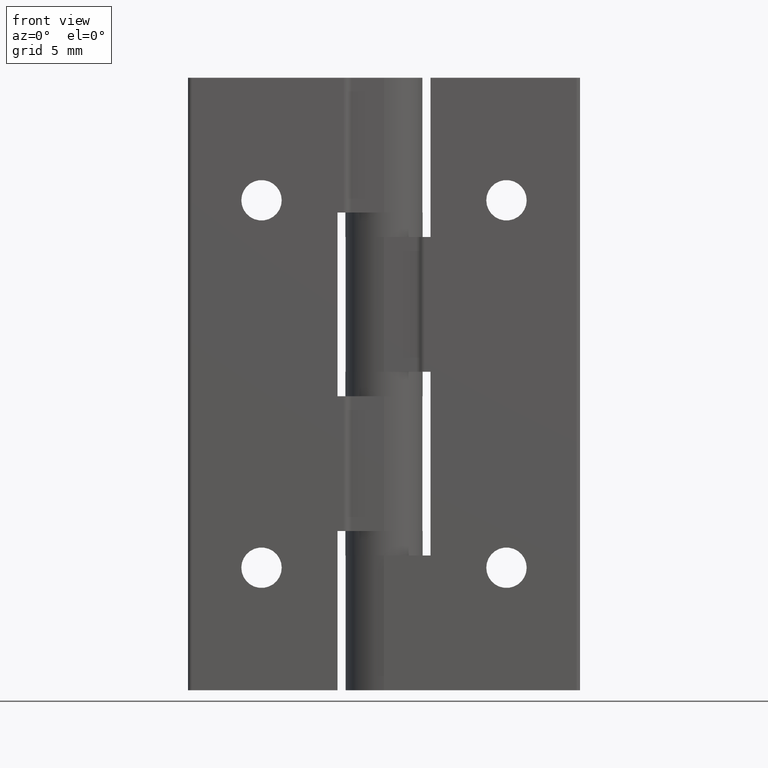
[diagram: clean part render]
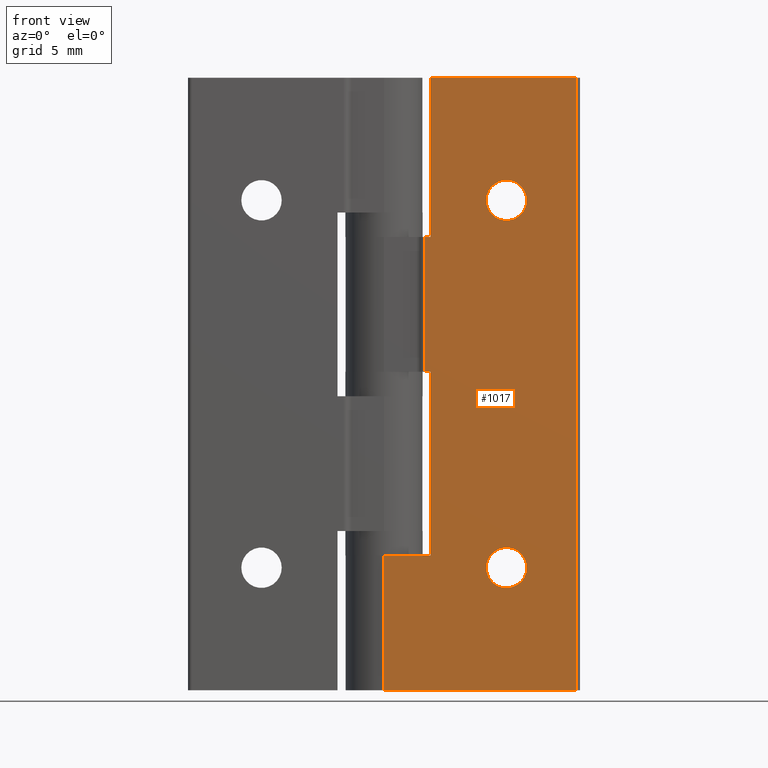
[diagram: same view with one face highlighted and labeled with its STEP entity id]
A machine part, front view. The second image highlights one B-rep face of the part: STEP entity #1017.
In plain terms, the highlighted planar face has unit normal (0, -1, 0).
Its self-contained STEP definition (entity closure, byte-faithful):
#106=FACE_BOUND('',#300,.T.);
#107=FACE_BOUND('',#301,.T.);
#160=CIRCLE('',#1125,1.65);
#162=CIRCLE('',#1129,1.65);
#216=FACE_OUTER_BOUND('',#299,.T.);
#299=EDGE_LOOP('',(#910,#911,#912,#913,#914,#915,#916,#917,#918,#919));
#300=EDGE_LOOP('',(#920));
#301=EDGE_LOOP('',(#921));
#354=LINE('',#1622,#428);
#357=LINE('',#1628,#431);
#361=LINE('',#1645,#435);
#364=LINE('',#1655,#438);
#368=LINE('',#1668,#442);
#377=LINE('',#1692,#451);
#380=LINE('',#1706,#454);
#383=LINE('',#1713,#457);
#385=LINE('',#1732,#459);
#386=LINE('',#1734,#460);
#428=VECTOR('',#1313,15.);
#431=VECTOR('',#1318,0.517792998515511);
#435=VECTOR('',#1334,3.8);
#438=VECTOR('',#1341,13.);
#442=VECTOR('',#1353,0.517792998515509);
#451=VECTOR('',#1378,11.9);
#454=VECTOR('',#1393,50.);
#457=VECTOR('',#1400,15.7);
#459=VECTOR('',#1426,11.);
#460=VECTOR('',#1429,11.);
#512=VERTEX_POINT('',#1619);
#513=VERTEX_POINT('',#1621);
#515=VERTEX_POINT('',#1627);
#522=VERTEX_POINT('',#1643);
#526=VERTEX_POINT('',#1652);
#527=VERTEX_POINT('',#1654);
#532=VERTEX_POINT('',#1666);
#539=VERTEX_POINT('',#1691);
#543=VERTEX_POINT('',#1702);
#546=VERTEX_POINT('',#1712);
#549=VERTEX_POINT('',#1723);
#551=VERTEX_POINT('',#1729);
#624=EDGE_CURVE('',#513,#512,#354,.T.);
#627=EDGE_CURVE('',#515,#513,#357,.T.);
#636=EDGE_CURVE('',#512,#522,#361,.T.);
#640=EDGE_CURVE('',#527,#526,#364,.T.);
#647=EDGE_CURVE('',#526,#532,#368,.T.);
#659=EDGE_CURVE('',#539,#527,#377,.T.);
#666=EDGE_CURVE('',#539,#543,#380,.T.);
#669=EDGE_CURVE('',#543,#546,#383,.T.);
#674=EDGE_CURVE('',#549,#549,#160,.T.);
#676=EDGE_CURVE('',#551,#551,#162,.T.);
#677=EDGE_CURVE('',#515,#532,#385,.T.);
#678=EDGE_CURVE('',#522,#546,#386,.T.);
#910=ORIENTED_EDGE('',*,*,#636,.T.);
#911=ORIENTED_EDGE('',*,*,#678,.T.);
#912=ORIENTED_EDGE('',*,*,#669,.F.);
#913=ORIENTED_EDGE('',*,*,#666,.F.);
#914=ORIENTED_EDGE('',*,*,#659,.T.);
#915=ORIENTED_EDGE('',*,*,#640,.T.);
#916=ORIENTED_EDGE('',*,*,#647,.T.);
#917=ORIENTED_EDGE('',*,*,#677,.F.);
#918=ORIENTED_EDGE('',*,*,#627,.T.);
#919=ORIENTED_EDGE('',*,*,#624,.T.);
#920=ORIENTED_EDGE('',*,*,#674,.T.);
#921=ORIENTED_EDGE('',*,*,#676,.T.);
#964=PLANE('',#1131);
#1017=ADVANCED_FACE('',(#216,#106,#107),#964,.T.);
#1125=AXIS2_PLACEMENT_3D('',#1724,#1414,#1415);
#1129=AXIS2_PLACEMENT_3D('',#1730,#1422,#1423);
#1131=AXIS2_PLACEMENT_3D('',#1733,#1427,#1428);
#1313=DIRECTION('',(-4.16333634234434E-16,-7.22223729145214E-32,-1.));
#1318=DIRECTION('',(1.,1.73472347597681E-16,-3.37258651702057E-16));
#1334=DIRECTION('',(-1.,-1.73472347597681E-16,0.));
#1341=DIRECTION('',(-1.49453099468771E-16,-2.59259800205974E-32,-1.));
#1353=DIRECTION('',(-1.,-1.73472347597681E-16,2.69694108116868E-16));
#1378=DIRECTION('',(-1.,-1.73472347597681E-16,0.));
#1393=DIRECTION('',(0.,0.,-1.));
#1400=DIRECTION('',(-1.,-1.73472347597681E-16,0.));
#1414=DIRECTION('center_axis',(-1.73472347597681E-16,1.,0.));
#1415=DIRECTION('ref_axis',(1.,0.,0.));
#1422=DIRECTION('center_axis',(-1.73472347597681E-16,1.,0.));
#1423=DIRECTION('ref_axis',(1.,0.,0.));
#1426=DIRECTION('',(0.,0.,1.));
#1427=DIRECTION('center_axis',(1.73472347597681E-16,-1.,0.));
#1428=DIRECTION('ref_axis',(-1.,-1.77635683940025E-16,0.));
#1429=DIRECTION('',(0.,0.,-1.));
#1619=CARTESIAN_POINT('',(3.8,-3.35,-39.));
#1621=CARTESIAN_POINT('',(3.8,-3.35,-24.));
#1622=CARTESIAN_POINT('',(3.80000000000001,-3.35,-12.));
#1627=CARTESIAN_POINT('',(3.28220700148449,-3.35,-24.));
#1628=CARTESIAN_POINT('',(3.31619247410172,-3.35,-24.));
#1643=CARTESIAN_POINT('',(0.,-3.35,-39.));
#1645=CARTESIAN_POINT('',(9.9,-3.35,-39.));
#1652=CARTESIAN_POINT('',(3.8,-3.35,-13.));
#1654=CARTESIAN_POINT('',(3.8,-3.35,0.));
#1655=CARTESIAN_POINT('',(3.8,-3.35,9.11663906759503E-16));
#1666=CARTESIAN_POINT('',(3.28220700148449,-3.35,-13.));
#1668=CARTESIAN_POINT('',(9.9,-3.35,-13.));
#1691=CARTESIAN_POINT('',(15.7,-3.35,0.));
#1692=CARTESIAN_POINT('',(16.,-3.35,0.));
#1702=CARTESIAN_POINT('',(15.7,-3.35,-50.));
#1706=CARTESIAN_POINT('',(15.7,-3.35,0.));
#1712=CARTESIAN_POINT('',(0.,-3.35,-50.));
#1713=CARTESIAN_POINT('',(16.,-3.35,-50.));
#1723=CARTESIAN_POINT('',(8.35,-3.35,-10.));
#1724=CARTESIAN_POINT('Origin',(10.,-3.35,-10.));
#1729=CARTESIAN_POINT('',(8.35,-3.35,-40.));
#1730=CARTESIAN_POINT('Origin',(10.,-3.35,-40.));
#1732=CARTESIAN_POINT('',(3.28220700148449,-3.35,0.));
#1733=CARTESIAN_POINT('Origin',(16.,-3.35,0.));
#1734=CARTESIAN_POINT('',(0.,-3.35,0.));